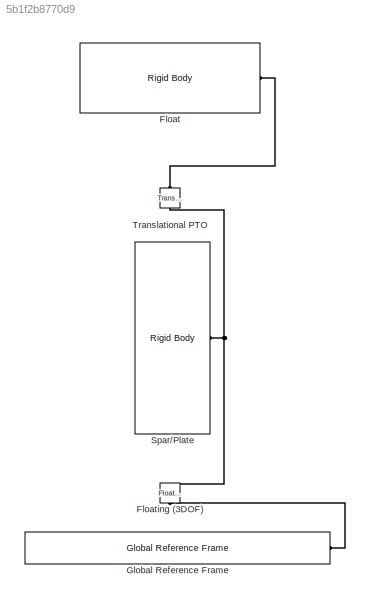
MODEL slx_5b1f2b8770d9
KIND model
CONFIG AbsTol = auto
CONFIG EnableMultiTasking = on
CONFIG FixedStep = 0.1
CONFIG MaxStep = auto
CONFIG MinStep = auto
CONFIG RelTol = 1e-3
CONFIG SampleTimeConstraint = Unconstrained
CONFIG Solver = ode4
CONFIG SolverName = ode4
CONFIG StartTime = 0
CONFIG StopTime = 400
BLOCK [Reference] Float  REF=WECSim_Lib/Body Elements/Rigid Body
  AttributesFormatString = %<body>
  Ports = [0, 0, 0, 0, 0, 0, 1]
  SourceBlock = WECSim_Lib/Body Elements/Rigid Body
  SourceProductName = WEC-Sim
BLOCK [Reference] Floating (3DOF)  REF=WECSim_Lib/Constraints/Floating (3DOF)
  AttributesFormatString = %<constraint>
  Ports = [0, 0, 0, 0, 0, 1, 1]
  SourceBlock = WECSim_Lib/Constraints/Floating (3DOF)
  SourceProductName = WEC-Sim
  SourceType = Constraints
BLOCK [Reference] Global Reference Frame  REF=WECSim_Lib/Frames/Global Reference Frame
  Ports = [0, 0, 0, 0, 0, 0, 1]
  SourceBlock = WECSim_Lib/Frames/Global Reference Frame
  SourceProductName = WEC-Sim
  SourceType = Frames
BLOCK [Reference] Spar//Plate  REF=WECSim_Lib/Body Elements/Rigid Body
  AttributesFormatString = %<body>
  Ports = [0, 0, 0, 0, 0, 0, 1]
  SourceBlock = WECSim_Lib/Body Elements/Rigid Body
  SourceProductName = WEC-Sim
BLOCK [Reference] Translational PTO  REF=WECSim_Lib/PTOs/Translational PTO
  AttributesFormatString = %<pto>
  Ports = [0, 0, 0, 0, 0, 1, 1]
  SourceBlock = WECSim_Lib/PTOs/Translational PTO
  SourceProductName = WEC-Sim
  SourceType = PTO
PLINE Float:RConn1 -- Translational PTO:LConn1
PLINE Floating (3DOF):LConn1 -- Global Reference Frame:RConn1
PNET net1: Floating (3DOF):RConn1 -- Spar//Plate:RConn1 -- Translational PTO:RConn1
note: PNET lines group multi-terminal physical nets as a canonical sorted terminal list (undirected conserving connections); 2-terminal nets keep the pairwise PLINE form
